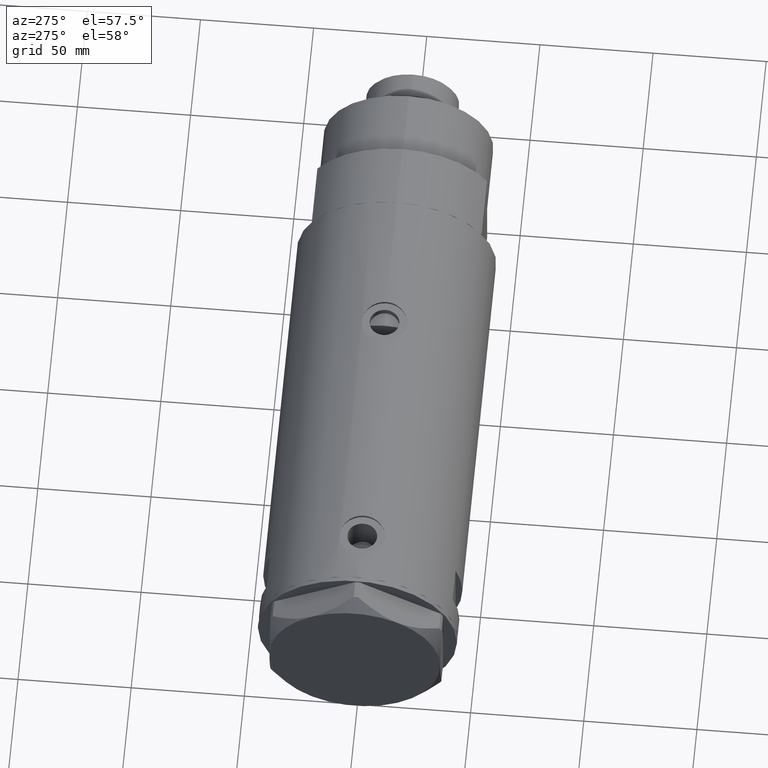
[diagram: clean part render]
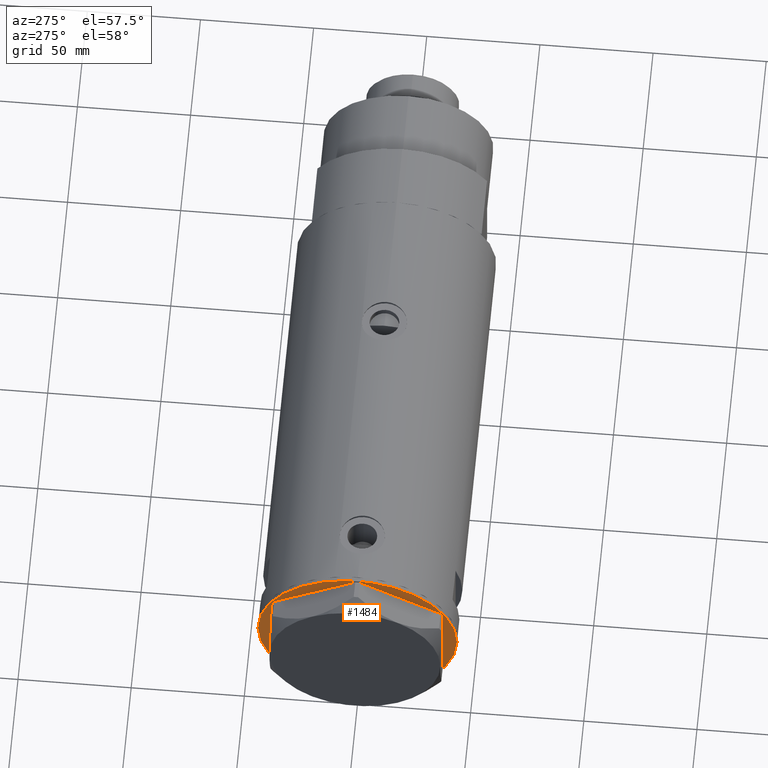
[diagram: same view with one face highlighted and labeled with its STEP entity id]
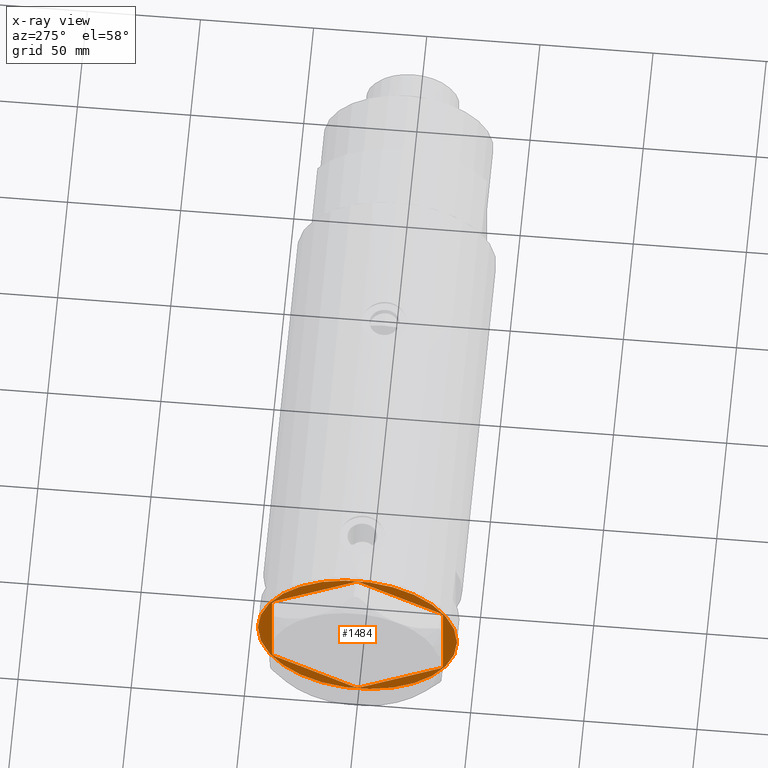
[diagram: x-ray of the same camera — body ghosted, the highlighted face saturated]
A machine part, auxiliary view. The second image highlights one B-rep face of the part: STEP entity #1484.
The next image is the same camera in x-ray: the body ghosted, the highlighted face saturated — about 0% of this face is hidden behind the body in this view.
In plain terms, the highlighted planar face has unit normal (1, 0, -0).
Its self-contained STEP definition (entity closure, byte-faithful):
#4 = LINE ( 'NONE', #4761, #511 ) ;
#23 = DIRECTION ( 'NONE',  ( 0.8660254037844385966, -0.4999999999999998890, 0.000000000000000000 ) ) ;
#36 = DIRECTION ( 'NONE',  ( -0.4999999999999981681, -0.8660254037844395958, -0.000000000000000000 ) ) ;
#171 = EDGE_CURVE ( 'NONE', #448, #2510, #2388, .T. ) ;
#256 = CARTESIAN_POINT ( 'NONE',  ( 37.26502577388072979, 21.51497266190834523, 0.000000000000000000 ) ) ;
#265 = ORIENTED_EDGE ( 'NONE', *, *, #3145, .T. ) ;
#291 = VERTEX_POINT ( 'NONE', #1396 ) ;
#332 = EDGE_CURVE ( 'NONE', #2129, #291, #4, .T. ) ;
#366 = VECTOR ( 'NONE', #36, 1000.000000000000227 ) ;
#399 = EDGE_CURVE ( 'NONE', #4643, #4093, #2313, .T. ) ;
#407 = EDGE_LOOP ( 'NONE', ( #1885, #1251 ) ) ;
#448 = VERTEX_POINT ( 'NONE', #4359 ) ;
#455 = CARTESIAN_POINT ( 'NONE',  ( 0.000000000000000000, -43.02994532381674020, 0.000000000000000000 ) ) ;
#486 = ORIENTED_EDGE ( 'NONE', *, *, #4732, .F. ) ;
#511 = VECTOR ( 'NONE', #2916, 999.9999999999998863 ) ;
#542 = ORIENTED_EDGE ( 'NONE', *, *, #332, .T. ) ;
#630 = CARTESIAN_POINT ( 'NONE',  ( 0.000000000000000000, 0.000000000000000000, 0.000000000000000000 ) ) ;
#830 = ORIENTED_EDGE ( 'NONE', *, *, #2167, .F. ) ;
#859 = CARTESIAN_POINT ( 'NONE',  ( 0.000000000000000000, 43.02994532381674020, 0.000000000000000000 ) ) ;
#963 = CARTESIAN_POINT ( 'NONE',  ( -37.26502577388077242, 21.51497266190828483, 0.000000000000000000 ) ) ;
#971 = ORIENTED_EDGE ( 'NONE', *, *, #1431, .T. ) ;
#983 = CARTESIAN_POINT ( 'NONE',  ( 37.75000000000000000, 20.67497266190835958, 0.000000000000000000 ) ) ;
#1030 = DIRECTION ( 'NONE',  ( 0.000000000000000000, 0.000000000000000000, -1.000000000000000000 ) ) ;
#1052 = DIRECTION ( 'NONE',  ( 0.4999999999999993894, -0.8660254037844390407, -0.000000000000000000 ) ) ;
#1074 = CARTESIAN_POINT ( 'NONE',  ( 36.78005154776143115, -22.35497266190837706, 0.000000000000000000 ) ) ;
#1083 = DIRECTION ( 'NONE',  ( -1.000000000000000000, 0.000000000000000000, 0.000000000000000000 ) ) ;
#1084 = CIRCLE ( 'NONE', #1232, 44.00000000000000000 ) ;
#1106 = ORIENTED_EDGE ( 'NONE', *, *, #171, .F. ) ;
#1112 = VERTEX_POINT ( 'NONE', #2050 ) ;
#1122 = CARTESIAN_POINT ( 'NONE',  ( 0.000000000000000000, 0.000000000000000000, 0.000000000000000000 ) ) ;
#1145 = AXIS2_PLACEMENT_3D ( 'NONE', #1122, #3372, #4537 ) ;
#1146 = CARTESIAN_POINT ( 'NONE',  ( 44.00000000000000000, 0.000000000000000000, 0.000000000000000000 ) ) ;
#1153 = VECTOR ( 'NONE', #3454, 1000.000000000000000 ) ;
#1156 = CARTESIAN_POINT ( 'NONE',  ( -37.74999999999999289, -21.79497266190838189, 0.000000000000000000 ) ) ;
#1167 = ORIENTED_EDGE ( 'NONE', *, *, #399, .T. ) ;
#1173 = CARTESIAN_POINT ( 'NONE',  ( 37.26502577388077242, -21.51497266190830260, 0.000000000000000000 ) ) ;
#1232 = AXIS2_PLACEMENT_3D ( 'NONE', #3277, #1030, #1083 ) ;
#1251 = ORIENTED_EDGE ( 'NONE', *, *, #4847, .F. ) ;
#1342 = CARTESIAN_POINT ( 'NONE',  ( 0.000000000000000000, 43.58994532381674247, 0.000000000000000000 ) ) ;
#1396 = CARTESIAN_POINT ( 'NONE',  ( -37.74999999999999289, -20.67497266190837379, 0.000000000000000000 ) ) ;
#1431 = EDGE_CURVE ( 'NONE', #4079, #1112, #3219, .T. ) ;
#1457 = EDGE_CURVE ( 'NONE', #2517, #2086, #1837, .T. ) ;
#1484 = ADVANCED_FACE ( 'NONE', ( #2981, #2620 ), #3761, .F. ) ;
#1493 = VERTEX_POINT ( 'NONE', #1146 ) ;
#1545 = VECTOR ( 'NONE', #2771, 1000.000000000000000 ) ;
#1572 = ORIENTED_EDGE ( 'NONE', *, *, #1457, .T. ) ;
#1707 = CARTESIAN_POINT ( 'NONE',  ( -0.9699484522385920515, -43.02994532381674020, 0.000000000000000000 ) ) ;
#1750 = DIRECTION ( 'NONE',  ( -1.000000000000000000, 0.000000000000000000, 0.000000000000000000 ) ) ;
#1837 = LINE ( 'NONE', #1173, #366 ) ;
#1878 = VECTOR ( 'NONE', #23, 1000.000000000000227 ) ;
#1885 = ORIENTED_EDGE ( 'NONE', *, *, #2925, .F. ) ;
#2009 = CARTESIAN_POINT ( 'NONE',  ( -37.75000000000000711, 20.67497266190837024, 0.000000000000000000 ) ) ;
#2050 = CARTESIAN_POINT ( 'NONE',  ( -36.78005154776143826, 22.35497266190836996, 0.000000000000000000 ) ) ;
#2086 = VERTEX_POINT ( 'NONE', #1074 ) ;
#2121 = DIRECTION ( 'NONE',  ( 0.000000000000000000, 0.000000000000000000, -1.000000000000000000 ) ) ;
#2129 = VERTEX_POINT ( 'NONE', #4087 ) ;
#2160 = EDGE_LOOP ( 'NONE', ( #1106, #4772, #830, #1572, #2199, #1167, #2694, #542, #4165, #971, #486, #265 ) ) ;
#2167 = EDGE_CURVE ( 'NONE', #2517, #4075, #2192, .T. ) ;
#2192 = LINE ( 'NONE', #4094, #3051 ) ;
#2199 = ORIENTED_EDGE ( 'NONE', *, *, #4341, .F. ) ;
#2300 = CARTESIAN_POINT ( 'NONE',  ( 37.75000000000000000, 21.79497266190837124, 0.000000000000000000 ) ) ;
#2309 = DIRECTION ( 'NONE',  ( -4.775569585389645902E-16, 1.000000000000000000, 0.000000000000000000 ) ) ;
#2312 = VERTEX_POINT ( 'NONE', #2521 ) ;
#2313 = LINE ( 'NONE', #455, #4656 ) ;
#2383 = LINE ( 'NONE', #1342, #1545 ) ;
#2388 = LINE ( 'NONE', #2300, #3339 ) ;
#2486 = DIRECTION ( 'NONE',  ( 0.4999999999999978351, 0.8660254037844398178, -0.000000000000000000 ) ) ;
#2510 = VERTEX_POINT ( 'NONE', #2834 ) ;
#2517 = VERTEX_POINT ( 'NONE', #4311 ) ;
#2521 = CARTESIAN_POINT ( 'NONE',  ( -0.9699484522385801721, 43.02994532381674020, 0.000000000000000000 ) ) ;
#2620 = FACE_OUTER_BOUND ( 'NONE', #407, .T. ) ;
#2694 = ORIENTED_EDGE ( 'NONE', *, *, #2987, .F. ) ;
#2748 = CIRCLE ( 'NONE', #3987, 44.00000000000000000 ) ;
#2771 = DIRECTION ( 'NONE',  ( -0.8660254037844387076, -0.4999999999999998890, 0.000000000000000000 ) ) ;
#2834 = CARTESIAN_POINT ( 'NONE',  ( 0.9699484522385850571, 43.02994532381674020, 0.000000000000000000 ) ) ;
#2916 = DIRECTION ( 'NONE',  ( -0.5000000000000002220, 0.8660254037844385966, -0.000000000000000000 ) ) ;
#2925 = EDGE_CURVE ( 'NONE', #1493, #4329, #2748, .T. ) ;
#2981 = FACE_BOUND ( 'NONE', #2160, .T. ) ;
#2987 = EDGE_CURVE ( 'NONE', #2129, #4093, #3175, .T. ) ;
#3039 = VECTOR ( 'NONE', #2486, 1000.000000000000114 ) ;
#3051 = VECTOR ( 'NONE', #2309, 1000.000000000000000 ) ;
#3059 = DIRECTION ( 'NONE',  ( 1.000000000000000000, -0.000000000000000000, -0.000000000000000000 ) ) ;
#3068 = LINE ( 'NONE', #4553, #1153 ) ;
#3145 = EDGE_CURVE ( 'NONE', #2312, #2510, #4561, .T. ) ;
#3175 = LINE ( 'NONE', #1156, #1878 ) ;
#3219 = LINE ( 'NONE', #963, #3039 ) ;
#3277 = CARTESIAN_POINT ( 'NONE',  ( 0.000000000000000000, 0.000000000000000000, 0.000000000000000000 ) ) ;
#3339 = VECTOR ( 'NONE', #4565, 1000.000000000000227 ) ;
#3372 = DIRECTION ( 'NONE',  ( 0.000000000000000000, 0.000000000000000000, -1.000000000000000000 ) ) ;
#3454 = DIRECTION ( 'NONE',  ( 3.183713056926429451E-16, -1.000000000000000000, 0.000000000000000000 ) ) ;
#3538 = CARTESIAN_POINT ( 'NONE',  ( 0.9699484522385760643, -43.02994532381674020, 0.000000000000000000 ) ) ;
#3618 = CARTESIAN_POINT ( 'NONE',  ( -44.00000000000000000, 5.388445916248353619E-15, 0.000000000000000000 ) ) ;
#3644 = LINE ( 'NONE', #4384, #4456 ) ;
#3671 = DIRECTION ( 'NONE',  ( 0.8660254037844388186, 0.4999999999999997224, 0.000000000000000000 ) ) ;
#3761 = PLANE ( 'NONE',  #1145 ) ;
#3834 = VECTOR ( 'NONE', #1052, 999.9999999999998863 ) ;
#3987 = AXIS2_PLACEMENT_3D ( 'NONE', #630, #2121, #1750 ) ;
#4005 = LINE ( 'NONE', #256, #3834 ) ;
#4041 = EDGE_CURVE ( 'NONE', #4079, #291, #3068, .T. ) ;
#4075 = VERTEX_POINT ( 'NONE', #983 ) ;
#4079 = VERTEX_POINT ( 'NONE', #2009 ) ;
#4087 = CARTESIAN_POINT ( 'NONE',  ( -36.78005154776141694, -22.35497266190838772, 0.000000000000000000 ) ) ;
#4093 = VERTEX_POINT ( 'NONE', #1707 ) ;
#4094 = CARTESIAN_POINT ( 'NONE',  ( 37.75000000000002132, -21.79497266190837124, 0.000000000000000000 ) ) ;
#4165 = ORIENTED_EDGE ( 'NONE', *, *, #4041, .F. ) ;
#4311 = CARTESIAN_POINT ( 'NONE',  ( 37.75000000000002132, -20.67497266190835958, 0.000000000000000000 ) ) ;
#4329 = VERTEX_POINT ( 'NONE', #3618 ) ;
#4341 = EDGE_CURVE ( 'NONE', #4643, #2086, #3644, .T. ) ;
#4359 = CARTESIAN_POINT ( 'NONE',  ( 36.78005154776142405, 22.35497266190837706, 0.000000000000000000 ) ) ;
#4384 = CARTESIAN_POINT ( 'NONE',  ( -4.107234936485837051E-15, -43.58994532381674247, 0.000000000000000000 ) ) ;
#4456 = VECTOR ( 'NONE', #3671, 1000.000000000000114 ) ;
#4528 = VECTOR ( 'NONE', #3059, 1000.000000000000000 ) ;
#4537 = DIRECTION ( 'NONE',  ( -1.000000000000000000, 0.000000000000000000, -0.000000000000000000 ) ) ;
#4553 = CARTESIAN_POINT ( 'NONE',  ( -37.75000000000000711, 21.79497266190837124, 0.000000000000000000 ) ) ;
#4561 = LINE ( 'NONE', #859, #4528 ) ;
#4565 = DIRECTION ( 'NONE',  ( -0.8660254037844385966, 0.5000000000000000000, 0.000000000000000000 ) ) ;
#4582 = DIRECTION ( 'NONE',  ( -1.000000000000000000, -0.000000000000000000, -0.000000000000000000 ) ) ;
#4643 = VERTEX_POINT ( 'NONE', #3538 ) ;
#4656 = VECTOR ( 'NONE', #4582, 1000.000000000000000 ) ;
#4732 = EDGE_CURVE ( 'NONE', #2312, #1112, #2383, .T. ) ;
#4761 = CARTESIAN_POINT ( 'NONE',  ( -37.26502577388070847, -21.51497266190838076, 0.000000000000000000 ) ) ;
#4772 = ORIENTED_EDGE ( 'NONE', *, *, #4852, .T. ) ;
#4847 = EDGE_CURVE ( 'NONE', #4329, #1493, #1084, .T. ) ;
#4852 = EDGE_CURVE ( 'NONE', #448, #4075, #4005, .T. ) ;